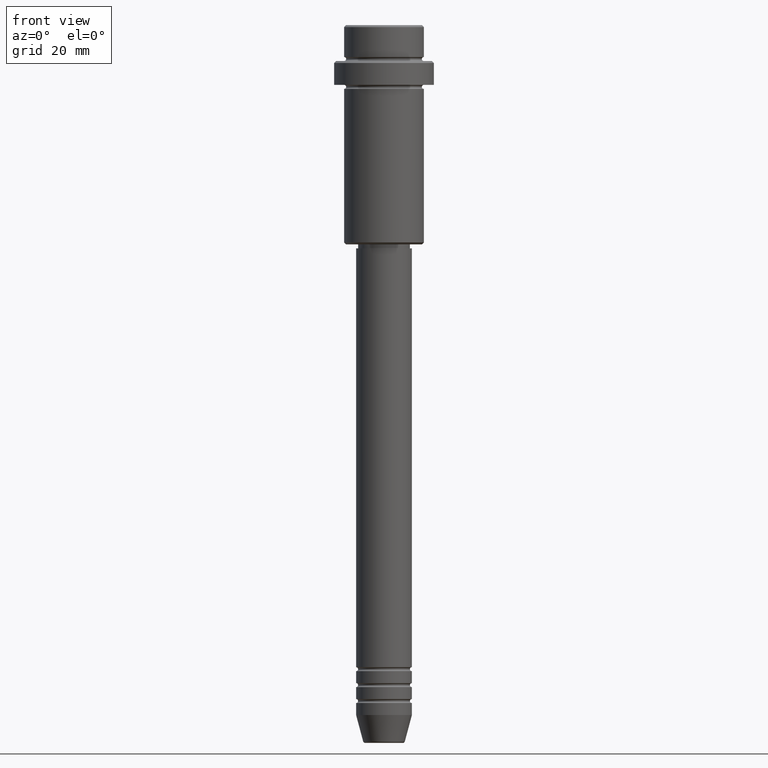
[diagram: clean part render]
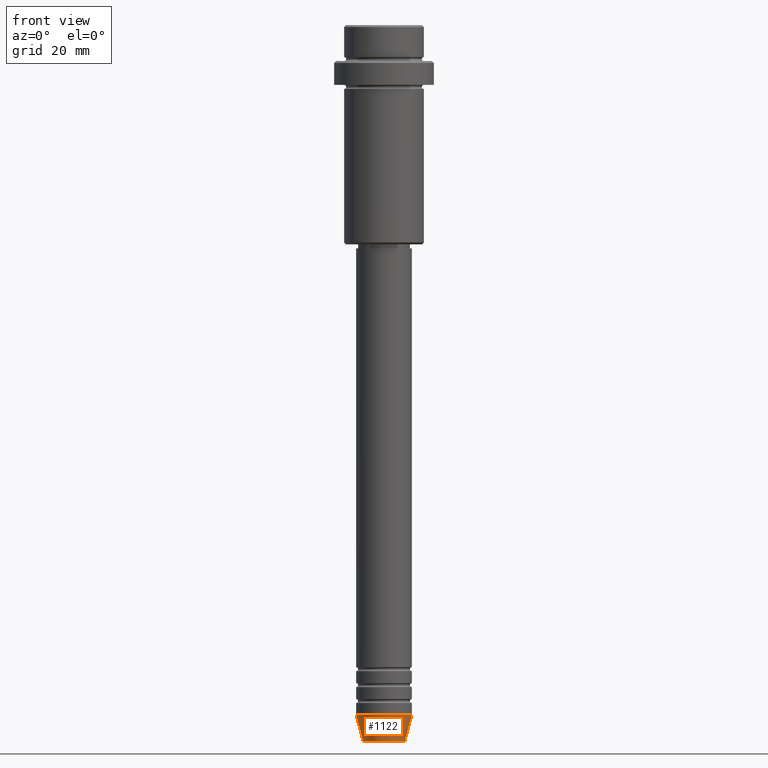
[diagram: same view with one face highlighted and labeled with its STEP entity id]
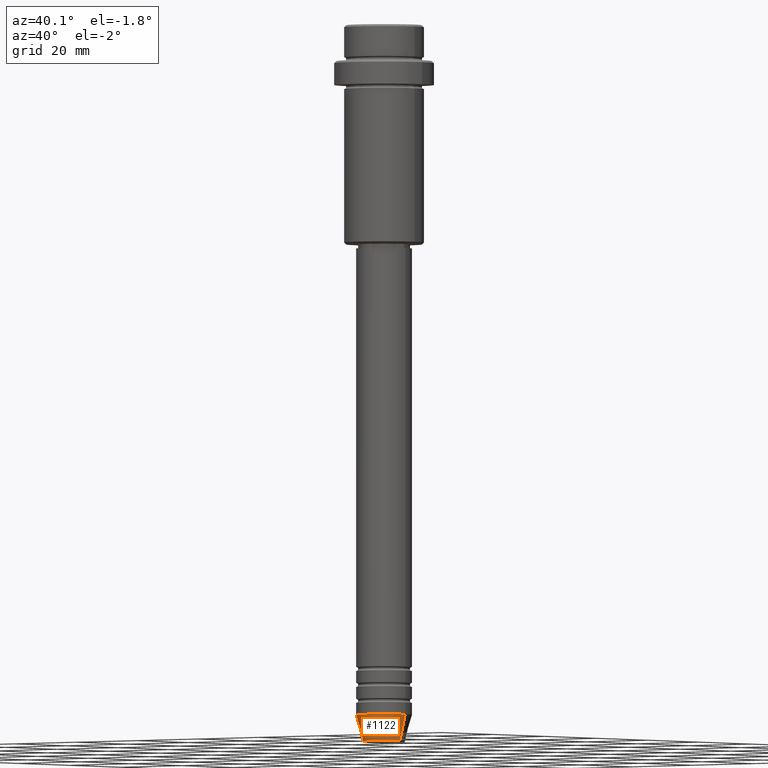
[diagram: same view with one face highlighted and labeled with its STEP entity id]
A machine part, front view. The second image highlights one B-rep face of the part: STEP entity #1122.
A second angle (auxiliary view) of the same face is appended — the face is thin or edge-on in the first view.
In plain terms, the highlighted conical surface has half-angle 15 deg.
Its self-contained STEP definition (entity closure, byte-faithful):
#7 = CARTESIAN_POINT ( 'NONE',  ( 7.000000000000000000, 0.000000000000000000, -173.0000000000000000 ) ) ;
#29 = VERTEX_POINT ( 'NONE', #441 ) ;
#74 = DIRECTION ( 'NONE',  ( -0.000000000000000000, -0.000000000000000000, 1.000000000000000000 ) ) ;
#122 = VECTOR ( 'NONE', #250, 1000.000000000000000 ) ;
#137 = ORIENTED_EDGE ( 'NONE', *, *, #1038, .F. ) ;
#147 = ORIENTED_EDGE ( 'NONE', *, *, #1266, .F. ) ;
#204 = DIRECTION ( 'NONE',  ( 0.2588190451025214056, 0.000000000000000000, 0.9659258262890680902 ) ) ;
#219 = CARTESIAN_POINT ( 'NONE',  ( 0.000000000000000000, 0.000000000000000000, -173.0000000000000000 ) ) ;
#250 = DIRECTION ( 'NONE',  ( -0.2588190451025214056, 3.169619151431772953E-17, 0.9659258262890680902 ) ) ;
#277 = DIRECTION ( 'NONE',  ( 1.000000000000000000, 0.000000000000000000, 0.000000000000000000 ) ) ;
#316 = CARTESIAN_POINT ( 'NONE',  ( 0.000000000000000000, 0.000000000000000000, -179.6294095225512422 ) ) ;
#323 = AXIS2_PLACEMENT_3D ( 'NONE', #1054, #74, #277 ) ;
#378 = ORIENTED_EDGE ( 'NONE', *, *, #1185, .T. ) ;
#425 = LINE ( 'NONE', #852, #730 ) ;
#441 = CARTESIAN_POINT ( 'NONE',  ( 5.223655072137191269, 0.000000000000000000, -179.6294095225512422 ) ) ;
#448 = CARTESIAN_POINT ( 'NONE',  ( -5.223655072137191269, 7.484830028987061160E-16, -179.6294095225512422 ) ) ;
#533 = DIRECTION ( 'NONE',  ( 1.000000000000000000, 0.000000000000000000, 0.000000000000000000 ) ) ;
#546 = CONICAL_SURFACE ( 'NONE', #732, 7.000000000000000000, 0.2617993877991501295 ) ;
#577 = VERTEX_POINT ( 'NONE', #687 ) ;
#633 = LINE ( 'NONE', #805, #122 ) ;
#687 = CARTESIAN_POINT ( 'NONE',  ( -7.000000000000000000, 8.572527594031473190E-16, -173.0000000000000000 ) ) ;
#730 = VECTOR ( 'NONE', #204, 1000.000000000000000 ) ;
#732 = AXIS2_PLACEMENT_3D ( 'NONE', #219, #1001, #533 ) ;
#755 = CIRCLE ( 'NONE', #1218, 5.223655072137191269 ) ;
#805 = CARTESIAN_POINT ( 'NONE',  ( -7.000000000000000000, 8.572527594031473190E-16, -173.0000000000000000 ) ) ;
#852 = CARTESIAN_POINT ( 'NONE',  ( 7.000000000000000000, 0.000000000000000000, -173.0000000000000000 ) ) ;
#882 = FACE_OUTER_BOUND ( 'NONE', #1272, .T. ) ;
#921 = CIRCLE ( 'NONE', #323, 7.000000000000000000 ) ;
#955 = ORIENTED_EDGE ( 'NONE', *, *, #1139, .T. ) ;
#968 = DIRECTION ( 'NONE',  ( -0.000000000000000000, -0.000000000000000000, 1.000000000000000000 ) ) ;
#1001 = DIRECTION ( 'NONE',  ( -0.000000000000000000, -0.000000000000000000, 1.000000000000000000 ) ) ;
#1038 = EDGE_CURVE ( 'NONE', #577, #1172, #921, .T. ) ;
#1054 = CARTESIAN_POINT ( 'NONE',  ( 0.000000000000000000, 0.000000000000000000, -173.0000000000000000 ) ) ;
#1090 = DIRECTION ( 'NONE',  ( 1.000000000000000000, 0.000000000000000000, 0.000000000000000000 ) ) ;
#1122 = ADVANCED_FACE ( 'NONE', ( #882 ), #546, .T. ) ;
#1139 = EDGE_CURVE ( 'NONE', #29, #1172, #425, .T. ) ;
#1172 = VERTEX_POINT ( 'NONE', #7 ) ;
#1185 = EDGE_CURVE ( 'NONE', #1370, #29, #755, .T. ) ;
#1218 = AXIS2_PLACEMENT_3D ( 'NONE', #316, #968, #1090 ) ;
#1266 = EDGE_CURVE ( 'NONE', #1370, #577, #633, .T. ) ;
#1272 = EDGE_LOOP ( 'NONE', ( #147, #378, #955, #137 ) ) ;
#1370 = VERTEX_POINT ( 'NONE', #448 ) ;